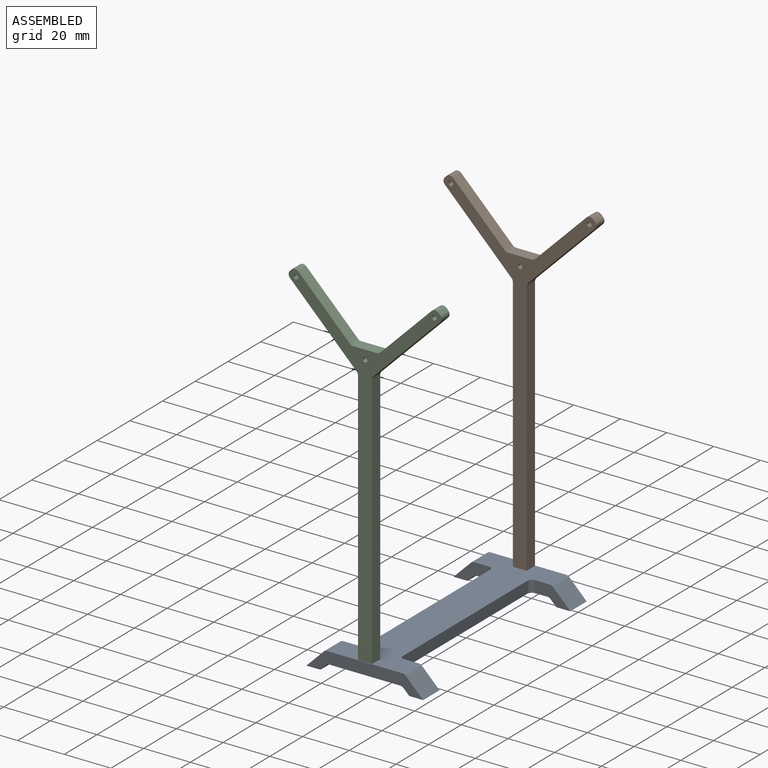
[diagram: assembled view]
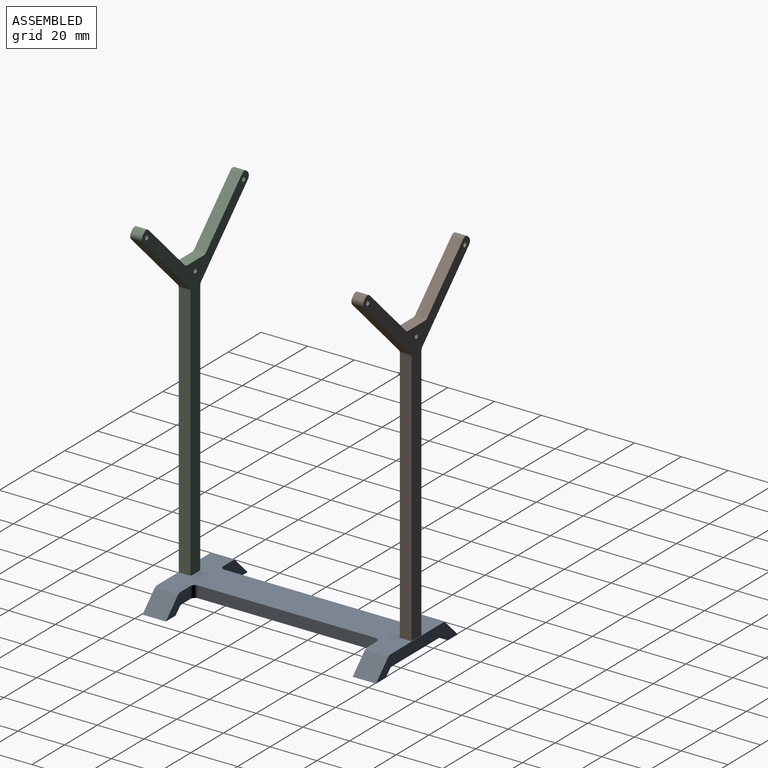
[diagram: assembled view, second angle]
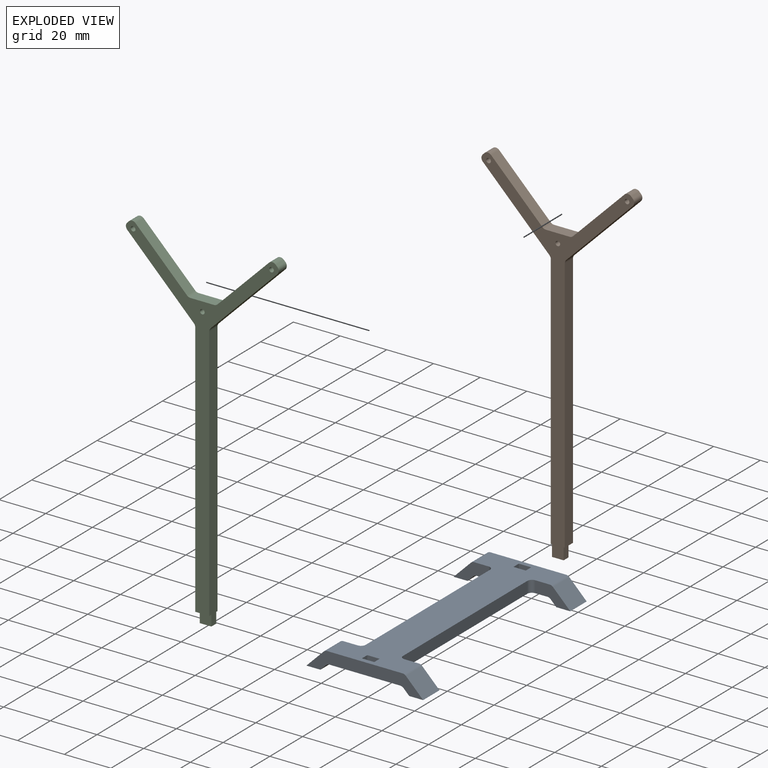
[diagram: exploded view]
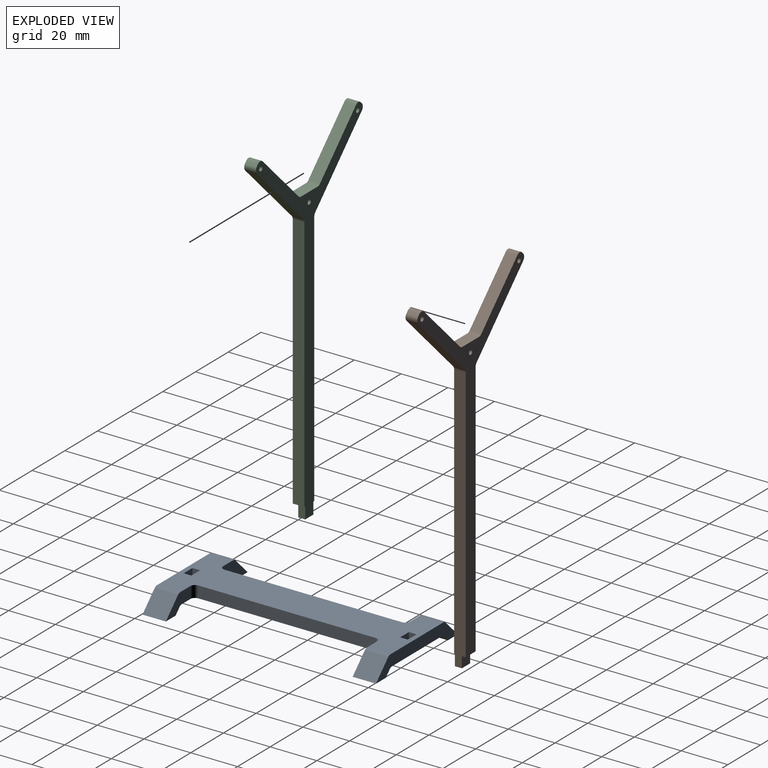
[diagram: exploded view, second angle]
ASSEMBLY  parts=3 mates=2
PART A: 42 faces, bbox 50x100x8 mm
  f0: plane 100x30.34mm, normal (0,0,-1), area 1855.3mm2, adj f14,f15,f16,f17,f18,f19,f20,f21
  f1: plane 100x32.34mm, normal (0,0,1), area 1895.3mm2, adj f14,f15,f16,f17,f18,f19,f20,f21
  f2: plane 10x2.41mm, normal (0.71,0,-0.71), area 34.1mm2, adj f7,f14,f18,f38
  f3: plane 10x2.41mm, normal (-0.71,0,-0.71), area 34.1mm2, adj f4,f15,f19,f31
  f4: plane 10x6mm, normal (0,0,-1), area 60mm2, adj f3,f5,f15,f19
  f5: plane 10x7.41mm, normal (0.71,0,0.71), area 104.9mm2, adj f4,f15,f19,f32
  f6: plane 10x7.41mm, normal (-0.71,0,0.71), area 104.9mm2, adj f7,f14,f18,f41
  f7: plane 10x6mm, normal (0,0,-1), area 60mm2, adj f2,f6,f14,f18
  f8: plane 10x2.41mm, normal (0.71,0,-0.71), area 34.1mm2, adj f13,f15,f17,f30
  f9: plane 10x2.41mm, normal (-0.71,0,-0.71), area 34.1mm2, adj f10,f14,f21,f39
  f10: plane 10x6mm, normal (0,0,-1), area 60mm2, adj f9,f11,f14,f21
  f11: plane 10x7.41mm, normal (0.71,0,0.71), area 104.9mm2, adj f10,f14,f21,f40
  f12: plane 10x7.41mm, normal (-0.71,0,0.71), area 104.9mm2, adj f13,f15,f17,f33
  f13: plane 10x6mm, normal (0,0,-1), area 60mm2, adj f8,f12,f15,f17
  f14: plane 50x8mm, normal (0,-1,0), area 231mm2, adj f0,f1,f2,f6,f7,f9,f10,f11
  f15: plane 50x8mm, normal (0,1,0), area 231mm2, adj f0,f1,f3,f4,f5,f8,f12,f13
  f16: plane 76x5mm, normal (-1,0,0), area 380mm2, adj f0,f1,f36,f37
  f17: plane 15x8mm, normal (0,-1,0), area 65.5mm2, adj f0,f1,f8,f12,f13,f30,f33,f37
  f18: plane 15x8mm, normal (0,1,0), area 65.5mm2, adj f0,f1,f2,f6,f7,f36,f38,f41
  f19: plane 15x8mm, normal (0,-1,0), area 65.5mm2, adj f0,f1,f3,f4,f5,f31,f32,f34
  f20: plane 76x5mm, normal (1,0,0), area 380mm2, adj f0,f1,f34,f35
  f21: plane 15x8mm, normal (0,1,0), area 65.5mm2, adj f0,f1,f9,f10,f11,f35,f39,f40
  f22: plane 5.3x5mm, normal (0,1,0), area 26.5mm2, adj f0,f1,f23,f25
  f23: plane 5x3.3mm, normal (-1,0,0), area 16.5mm2, adj f0,f1,f22,f24
  f24: plane 5.3x5mm, normal (0,-1,0), area 26.5mm2, adj f0,f1,f23,f25
  f25: plane 5x3.3mm, normal (1,0,0), area 16.5mm2, adj f0,f1,f22,f24
  f26: plane 5.3x5mm, normal (0,1,0), area 26.5mm2, adj f0,f1,f27,f29
  f27: plane 5x3.3mm, normal (-1,0,0), area 16.5mm2, adj f0,f1,f26,f28
  f28: plane 5.3x5mm, normal (0,-1,0), area 26.5mm2, adj f0,f1,f27,f29
  f29: plane 5x3.3mm, normal (1,0,0), area 16.5mm2, adj f0,f1,f26,f28
  f30: cylinder r=2mm len=10mm, axis (0,-1,0), area 15.7mm2, adj f0,f8,f15,f17
  f31: cylinder r=2mm len=10mm, axis (0,1,0), area 15.7mm2, adj f0,f3,f15,f19
  f32: cylinder r=2mm len=10mm, axis (0,1,0), area 15.7mm2, adj f1,f5,f15,f19
  f33: cylinder r=2mm len=10mm, axis (0,-1,0), area 15.7mm2, adj f1,f12,f15,f17
  f34: cylinder r=2mm len=5mm, axis (0,0,1), area 15.7mm2, adj f0,f1,f19,f20
  f35: cylinder r=2mm len=5mm, axis (0,0,-1), area 15.7mm2, adj f0,f1,f20,f21
  f36: cylinder r=2mm len=5mm, axis (0,0,-1), area 15.7mm2, adj f0,f1,f16,f18
  f37: cylinder r=2mm len=5mm, axis (0,0,1), area 15.7mm2, adj f0,f1,f16,f17
  f38: cylinder r=2mm len=10mm, axis (0,-1,0), area 15.7mm2, adj f0,f2,f14,f18
  f39: cylinder r=2mm len=10mm, axis (0,1,0), area 15.7mm2, adj f0,f9,f14,f21
  f40: cylinder r=2mm len=10mm, axis (0,1,0), area 15.7mm2, adj f1,f11,f14,f21
  f41: cylinder r=2mm len=10mm, axis (0,-1,0), area 15.7mm2, adj f1,f6,f14,f18
PART B: 27 faces, bbox 65.4x5x149.2 mm
  f0: plane 144.17x65.41mm, normal (0,1,0), area 1128.5mm2, adj f3,f4,f5,f6,f7,f8,f9,f10
  f1: plane 149.17x65.41mm, normal (0,-1,0), area 1153.5mm2, adj f2,f3,f4,f5,f6,f7,f8,f9
  f2: plane 5x3mm, normal (0,0,-1), area 15mm2, adj f1,f23,f24,f25
  f3: plane 110.1x5mm, normal (1,0,0), area 550.5mm2, adj f0,f1,f15,f26
  f4: plane 28.54x28.54mm, normal (0.71,0,-0.71), area 201.8mm2, adj f0,f1,f15,f16
  f5: plane 5x0.71mm, normal (0.71,0,0.71), area 5mm2, adj f0,f1,f16,f17
  f6: plane 22.07x22.07mm, normal (-0.71,0,0.71), area 156.1mm2, adj f0,f1,f17,f18
  f7: plane 10.2x5mm, normal (0,0,1), area 51mm2, adj f0,f1,f18,f19
  f8: plane 22.07x22.07mm, normal (0.71,0,0.71), area 156.1mm2, adj f0,f1,f19,f20
  f9: plane 5x0.71mm, normal (-0.71,0,0.71), area 5mm2, adj f0,f1,f20,f21
  f10: plane 28.54x28.54mm, normal (-0.71,0,-0.71), area 201.8mm2, adj f0,f1,f21,f22
  f11: cylinder r=1mm len=5mm, axis (0,1,0), area 31.4mm2, adj f0,f1
  f12: cylinder r=1mm len=5mm, axis (0,1,0), area 31.4mm2, adj f0,f1
  f13: cylinder r=1mm len=5mm, axis (0,1,0), area 31.4mm2, adj f0,f1
  f14: plane 110.1x5mm, normal (-1,0,0), area 550.5mm2, adj f0,f1,f22,f26
  f15: cylinder r=2mm len=5mm, axis (0,-1,0), area 7.9mm2, adj f0,f1,f3,f4
  f16: cylinder r=2mm len=5mm, axis (0,1,0), area 15.7mm2, adj f0,f1,f4,f5
  f17: cylinder r=2mm len=5mm, axis (0,1,0), area 15.7mm2, adj f0,f1,f5,f6
  f18: cylinder r=2mm len=5mm, axis (0,-1,0), area 7.9mm2, adj f0,f1,f6,f7
  f19: cylinder r=2mm len=5mm, axis (0,1,0), area 7.9mm2, adj f0,f1,f7,f8
  f20: cylinder r=2mm len=5mm, axis (0,1,0), area 15.7mm2, adj f0,f1,f8,f9
  f21: cylinder r=2mm len=5mm, axis (0,1,0), area 15.7mm2, adj f0,f1,f9,f10
  f22: cylinder r=2mm len=5mm, axis (0,-1,0), area 7.9mm2, adj f0,f1,f10,f14
  f23: plane 5x3mm, normal (-1,0,0), area 15mm2, adj f1,f2,f25,f26
  f24: plane 5x3mm, normal (1,0,0), area 15mm2, adj f1,f2,f25,f26
  f25: plane 5x5mm, normal (0,1,0), area 25mm2, adj f2,f23,f24,f26
  f26: plane 6x5mm, normal (0,0,-1), area 15mm2, adj f0,f1,f3,f14,f23,f24,f25
PART C: same geometry as B
PLACE A t=(-24.1,23.95,-22.19)mm fixed
PLACE B t=(-24.1,23.8,-19.19)mm
PLACE C rot(axis=(0,0,1),180deg) t=(-24.1,-75.9,-19.19)mm
MATE fastened A.f0 <-> C.f2  axis (0,0,-1) through (-24.1,-72.4,-19.19)mm
MATE fastened A.f0 <-> B.f2  axis (0,0,-1) through (-24.1,20.3,-19.19)mm
